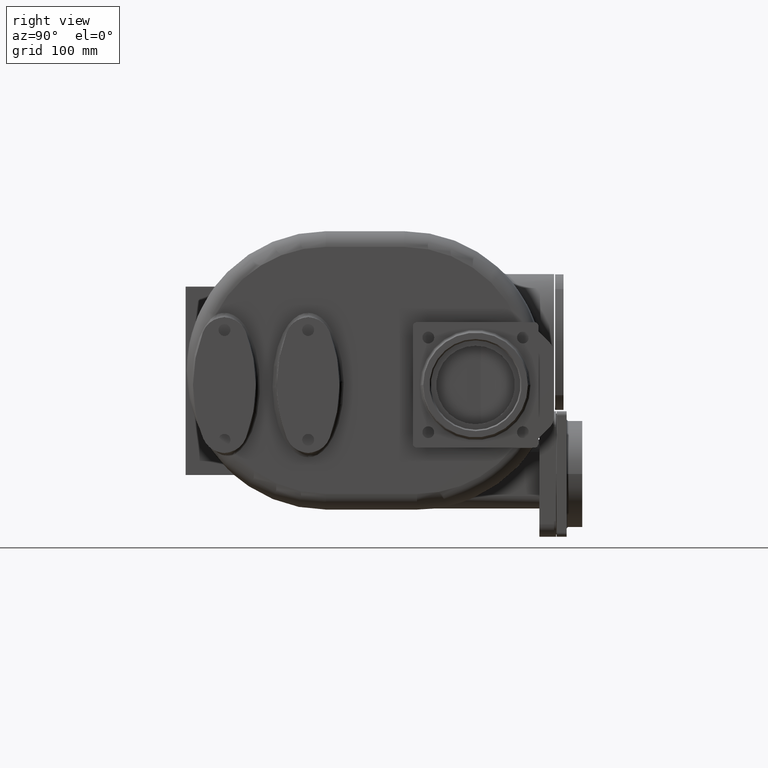
[diagram: clean part render]
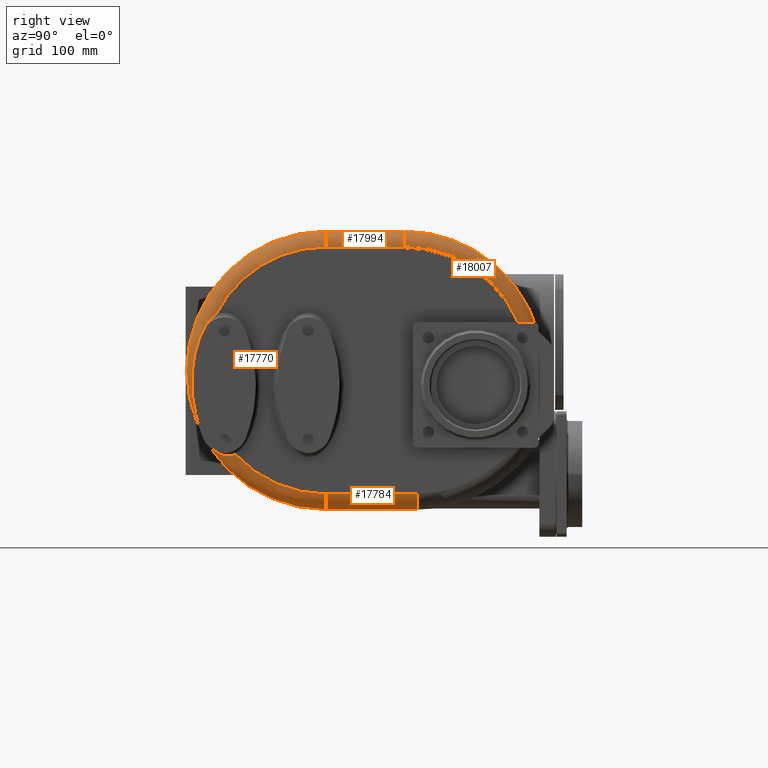
[diagram: same view with one multi-face feature highlighted, each face labeled with its STEP entity id]
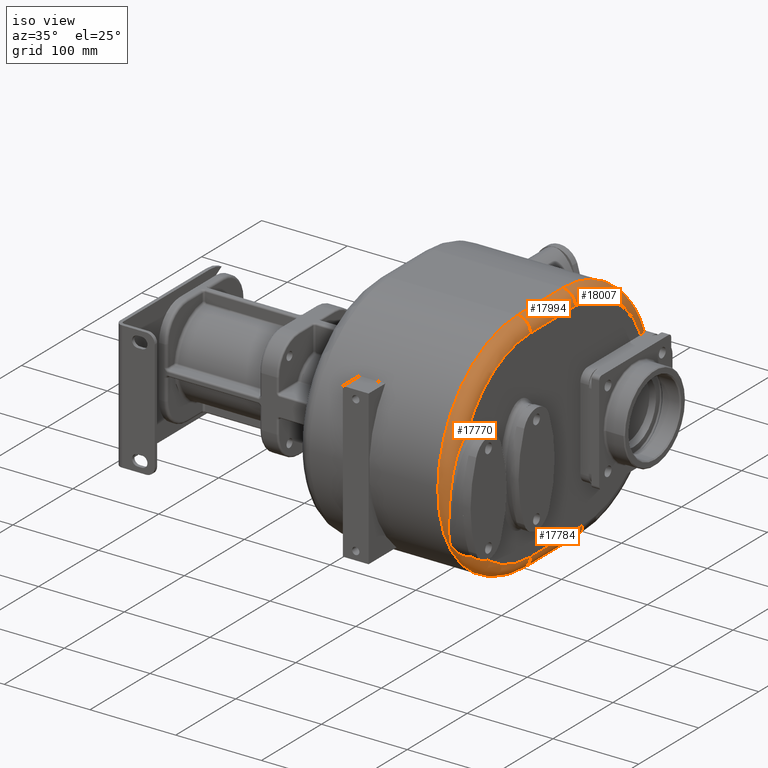
[diagram: same view with one multi-face feature highlighted, each face labeled with its STEP entity id]
A machine part, right view. The highlighted faces form ONE feature: a constant-radius fillet chain: 4 tangent blend faces with common blend radius 15 mm. The faces share edges in the B-rep.
A second angle (iso view) of the same feature is appended — it is thin or edge-on in the first view.
Their STEP definitions:
[1] entity #17770 (Torus):
#3600=CARTESIAN_POINT('',(1.099999968321E2,2.854941796201E1,5.295498208904E1));
#3602=CARTESIAN_POINT('',(1.1E2,1.34E2,0.E0));
#3603=DIRECTION('',(1.E0,0.E0,0.E0));
#3604=DIRECTION('',(0.E0,0.E0,1.E0));
#3605=AXIS2_PLACEMENT_3D('',#3602,#3603,#3604);
#3625=CARTESIAN_POINT('',(1.1E2,1.34E2,0.E0));
#3626=DIRECTION('',(1.E0,0.E0,0.E0));
#3627=DIRECTION('',(0.E0,-7.353211135372E-1,-6.777188650071E-1));
#3628=AXIS2_PLACEMENT_3D('',#3625,#3626,#3627);
#3630=CARTESIAN_POINT('',(1.099999543372E2,4.723210860638E1,-7.997082607466E1));
#3983=CARTESIAN_POINT('',(1.079149421773E2,3.854579071676E1,-8.167731309802E1));
#3984=CARTESIAN_POINT('',(1.079897949988E2,3.872993324850E1,-8.169761679331E1));
#3985=CARTESIAN_POINT('',(1.081352500198E2,3.909453872647E1,-8.173120300626E1));
#3986=CARTESIAN_POINT('',(1.083404899019E2,3.962974912810E1,-8.176155064838E1));
#3987=CARTESIAN_POINT('',(1.085330286433E2,4.015364092347E1,-8.177287008109E1));
#3988=CARTESIAN_POINT('',(1.087130223685E2,4.066645585732E1,-8.176617161015E1));
#3989=CARTESIAN_POINT('',(1.088806816907E2,4.116853132699E1,-8.174230818800E1));
#3990=CARTESIAN_POINT('',(1.090361280662E2,4.166003728225E1,-8.170216415885E1));
#3991=CARTESIAN_POINT('',(1.091795335776E2,4.214123041396E1,-8.164647428566E1));
#3992=CARTESIAN_POINT('',(1.093110655642E2,4.261248063496E1,-8.157600314208E1));
#3993=CARTESIAN_POINT('',(1.094308955891E2,4.307416591645E1,-8.149135255774E1));
#3994=CARTESIAN_POINT('',(1.095391410393E2,4.352658791554E1,-8.139314359606E1));
#3995=CARTESIAN_POINT('',(1.096359146895E2,4.397009038756E1,-8.128192135524E1));
#3996=CARTESIAN_POINT('',(1.097212913245E2,4.440490410809E1,-8.115815773866E1));
#3997=CARTESIAN_POINT('',(1.097953243939E2,4.483130163508E1,-8.102237745890E1));
#3998=CARTESIAN_POINT('',(1.098580888305E2,4.524973266349E1,-8.087487733268E1));
#3999=CARTESIAN_POINT('',(1.099096211668E2,4.566081640580E1,-8.071591898249E1));
#4000=CARTESIAN_POINT('',(1.099498667365E2,4.606475232610E1,-8.054580537908E1));
#4001=CARTESIAN_POINT('',(1.099787193561E2,4.646146113465E1,-8.036492373336E1));
#4002=CARTESIAN_POINT('',(1.099961354777E2,4.685096834644E1,-8.017368568143E1));
#4003=CARTESIAN_POINT('',(1.099999548054E2,4.710587665758E1,-8.003950888655E1));
#4004=CARTESIAN_POINT('',(1.099999543372E2,4.723210860638E1,-7.997082607466E1));
#4006=CARTESIAN_POINT('',(9.5E1,1.34E2,1.18E2));
#4007=DIRECTION('',(0.E0,-1.E0,0.E0));
#4008=DIRECTION('',(1.E0,0.E0,0.E0));
#4009=AXIS2_PLACEMENT_3D('',#4006,#4007,#4008);
#4011=CARTESIAN_POINT('',(1.099999968321E2,2.854941796201E1,5.295498208904E1));
#4012=CARTESIAN_POINT('',(1.100000134998E2,2.835316664937E1,5.282956656615E1));
#4013=CARTESIAN_POINT('',(1.099971587277E2,2.795793976020E1,5.256768140155E1));
#4014=CARTESIAN_POINT('',(1.099846295436E2,2.735534771317E1,5.214204110849E1));
#4015=CARTESIAN_POINT('',(1.099640074941E2,2.674294766801E1,5.168027092209E1));
#4016=CARTESIAN_POINT('',(1.099354791951E2,2.611988943082E1,5.118003767492E1));
#4017=CARTESIAN_POINT('',(1.098992291992E2,2.548600346781E1,5.063874448685E1));
#4018=CARTESIAN_POINT('',(1.098554424202E2,2.484081833294E1,5.005331215967E1));
#4019=CARTESIAN_POINT('',(1.098043216589E2,2.418406782779E1,4.942044962757E1));
#4020=CARTESIAN_POINT('',(1.097460953403E2,2.351574475143E1,4.873697575795E1));
#4021=CARTESIAN_POINT('',(1.096810094529E2,2.283599429479E1,4.799971547537E1));
#4022=CARTESIAN_POINT('',(1.096093485488E2,2.214552119710E1,4.720620097528E1));
#4023=CARTESIAN_POINT('',(1.095315023953E2,2.144582458251E1,4.635474143582E1));
#4024=CARTESIAN_POINT('',(1.094480070869E2,2.073849957681E1,4.544281567396E1));
#4025=CARTESIAN_POINT('',(1.093593080882E2,2.002437357994E1,4.446717712550E1));
#4026=CARTESIAN_POINT('',(1.092658307218E2,1.930429348830E1,4.342452615130E1));
#4027=CARTESIAN_POINT('',(1.091679566343E2,1.857945720835E1,4.231244895863E1));
#4028=CARTESIAN_POINT('',(1.090661342409E2,1.785159594990E1,4.112898561802E1));
#4029=CARTESIAN_POINT('',(1.089609497419E2,1.712250473550E1,3.987100163132E1));
#4030=CARTESIAN_POINT('',(1.088527816133E2,1.639330534926E1,3.853458143421E1));
#4031=CARTESIAN_POINT('',(1.087419279814E2,1.566541850921E1,3.711627856810E1));
#4032=CARTESIAN_POINT('',(1.086287098563E2,1.494185048926E1,3.561660949650E1));
#4033=CARTESIAN_POINT('',(1.085136937515E2,1.422596268130E1,3.403527917892E1));
#4034=CARTESIAN_POINT('',(1.083971294370E2,1.351983774987E1,3.236954701905E1));
#4035=CARTESIAN_POINT('',(1.082790640687E2,1.282557875331E1,3.061698881989E1));
#4036=CARTESIAN_POINT('',(1.081591955334E2,1.214510830461E1,2.877561796165E1));
#4037=CARTESIAN_POINT('',(1.080374676953E2,1.148116949769E1,2.684305135980E1));
#4038=CARTESIAN_POINT('',(1.079138957546E2,1.083767049488E1,2.482027336324E1));
#4039=CARTESIAN_POINT('',(1.077881589903E2,1.021810729054E1,2.270858251238E1));
#4040=CARTESIAN_POINT('',(1.076595264665E2,9.625529907349E0,2.050948321391E1));
#4041=CARTESIAN_POINT('',(1.075275809057E2,9.063771212637E0,1.822493314615E1));
#4042=CARTESIAN_POINT('',(1.073918036168E2,8.536918818585E0,1.585952203550E1));
#4043=CARTESIAN_POINT('',(1.072513096553E2,8.048411553964E0,1.341791998880E1));
#4044=CARTESIAN_POINT('',(1.071049189037E2,7.601225008345E0,1.090475348919E1));
#4045=CARTESIAN_POINT('',(1.069518620310E2,7.198954752628E0,8.326285981737E0));
#4046=CARTESIAN_POINT('',(1.067911987787E2,6.844754144147E0,5.690479465267E0));
#4047=CARTESIAN_POINT('',(1.066217262244E2,6.541032737843E0,3.005227532360E0));
#4048=CARTESIAN_POINT('',(1.064421796669E2,6.289760131036E0,2.784704989680E-1));
#4049=CARTESIAN_POINT('',(1.062517001691E2,6.092951046978E0,-2.480808892410E0));
#4050=CARTESIAN_POINT('',(1.060493179941E2,5.951896537566E0,-5.263223814640E0));
#4051=CARTESIAN_POINT('',(1.058339878866E2,5.867211551783E0,-8.059378008124E0));
#4052=CARTESIAN_POINT('',(1.056048235936E2,5.839069967176E0,-1.085985781864E1));
#4053=CARTESIAN_POINT('',(1.053612294759E2,5.867387150527E0,-1.365616473016E1));
#4054=CARTESIAN_POINT('',(1.051026217639E2,5.951500022901E0,-1.643986500484E1));
#4055=CARTESIAN_POINT('',(1.048285092835E2,6.090197717317E0,-1.920232400274E1));
#4056=CARTESIAN_POINT('',(1.045386965225E2,6.282084004247E0,-2.193609331906E1));
#4057=CARTESIAN_POINT('',(1.042330910720E2,6.525587733357E0,-2.463527349903E1));
#4058=CARTESIAN_POINT('',(1.039117094236E2,6.818706214589E0,-2.729358043591E1));
#4059=CARTESIAN_POINT('',(1.035748037712E2,7.159334845801E0,-2.990569462767E1));
#4060=CARTESIAN_POINT('',(1.032227276997E2,7.545661076667E0,-3.246879462623E1));
#4061=CARTESIAN_POINT('',(1.028558446504E2,7.975585207072E0,-3.497974358513E1));
#4062=CARTESIAN_POINT('',(1.024748780159E2,8.447120938364E0,-3.743590135518E1));
#4063=CARTESIAN_POINT('',(1.020810046491E2,8.958662207051E0,-3.983575158337E1));
#4064=CARTESIAN_POINT('',(1.016753581398E2,9.508020000508E0,-4.217684613867E1));
#4065=CARTESIAN_POINT('',(1.012591738286E2,1.009442121296E1,-4.446123918523E1));
#4066=CARTESIAN_POINT('',(1.008339390474E2,1.071804826340E1,-4.669334272810E1));
#4067=CARTESIAN_POINT('',(1.003998045919E2,1.138014373620E1,-4.887985696978E1));
#4068=CARTESIAN_POINT('',(9.997403772003E1,1.206305709337E1,-5.096510326674E1));
#4069=CARTESIAN_POINT('',(9.957618570637E1,1.273891929757E1,-5.288454734034E1));
#4070=CARTESIAN_POINT('',(9.922025956818E1,1.338398761309E1,-5.460162105078E1));
#4071=CARTESIAN_POINT('',(9.891188741317E1,1.399281693209E1,-5.612956861762E1));
#4072=CARTESIAN_POINT('',(9.865297453643E1,1.455469709281E1,-5.746899193262E1));
#4073=CARTESIAN_POINT('',(9.844100869560E1,1.506587602833E1,-5.863460396584E1));
#4074=CARTESIAN_POINT('',(9.827419751297E1,1.553628062129E1,-5.966332467555E1));
#4075=CARTESIAN_POINT('',(9.814662963665E1,1.597501694370E1,-6.058707587688E1));
#4076=CARTESIAN_POINT('',(9.805198006334E1,1.639488141842E1,-6.144085110228E1));
#4077=CARTESIAN_POINT('',(9.798681089634E1,1.680555384491E1,-6.224885226598E1));
#4078=CARTESIAN_POINT('',(9.794933557865E1,1.720351339746E1,-6.300802002279E1));
#4079=CARTESIAN_POINT('',(9.793682871542E1,1.758675360491E1,-6.371831124396E1));
#4080=CARTESIAN_POINT('',(9.794678147257E1,1.795818054535E1,-6.438802993675E1));
#4081=CARTESIAN_POINT('',(9.797785975640E1,1.832293349612E1,-6.502821857770E1));
#4082=CARTESIAN_POINT('',(9.803005507075E1,1.868621792475E1,-6.564872721585E1));
#4083=CARTESIAN_POINT('',(9.810520672106E1,1.905607173101E1,-6.626284089395E1));
#4084=CARTESIAN_POINT('',(9.820406177648E1,1.944096212557E1,-6.688409564063E1));
#4085=CARTESIAN_POINT('',(9.832957528153E1,1.985057811788E1,-6.752610330714E1));
#4086=CARTESIAN_POINT('',(9.848377288119E1,2.028834394330E1,-6.819116704427E1));
#4087=CARTESIAN_POINT('',(9.866831439177E1,2.075686146575E1,-6.887971599676E1));
#4088=CARTESIAN_POINT('',(9.888453869020E1,2.125859354807E1,-6.959135776319E1));
#4089=CARTESIAN_POINT('',(9.913214491699E1,2.179267403799E1,-7.032055531191E1));
#4090=CARTESIAN_POINT('',(9.941133209668E1,2.235934905195E1,-7.106297931206E1));
#4091=CARTESIAN_POINT('',(9.972010679066E1,2.295648288175E1,-7.181149342784E1));
#4092=CARTESIAN_POINT('',(1.000552380298E2,2.358155809437E1,-7.255932862963E1));
#4093=CARTESIAN_POINT('',(1.004117905933E2,2.423060494562E1,-7.329917913310E1));
#4094=CARTESIAN_POINT('',(1.007857786279E2,2.489885913891E1,-7.402285469104E1));
#4095=CARTESIAN_POINT('',(1.011724378368E2,2.558083188704E1,-7.472266746405E1));
#4096=CARTESIAN_POINT('',(1.015670391260E2,2.627153796377E1,-7.539290401584E1));
#4097=CARTESIAN_POINT('',(1.019664116367E2,2.696825156511E1,-7.603083414546E1));
#4098=CARTESIAN_POINT('',(1.023671928256E2,2.766741793006E1,-7.663344546515E1));
#4099=CARTESIAN_POINT('',(1.027661616496E2,2.836577411498E1,-7.719888780435E1));
#4100=CARTESIAN_POINT('',(1.031614723292E2,2.906200260040E1,-7.772726184074E1));
#4101=CARTESIAN_POINT('',(1.035513421605E2,2.975435975892E1,-7.821836389774E1));
#4102=CARTESIAN_POINT('',(1.039341266264E2,3.044129667911E1,-7.867250040261E1));
#4103=CARTESIAN_POINT('',(1.043086819610E2,3.112186676469E1,-7.909048228019E1));
#4104=CARTESIAN_POINT('',(1.046739079854E2,3.179494889614E1,-7.947304912286E1));
#4105=CARTESIAN_POINT('',(1.050288764802E2,3.245966289779E1,-7.982125209509E1));
#4106=CARTESIAN_POINT('',(1.053729986265E2,3.311552015210E1,-8.013631360274E1));
#4107=CARTESIAN_POINT('',(1.057057376043E2,3.376199584571E1,-8.041941542751E1));
#4108=CARTESIAN_POINT('',(1.060265873225E2,3.439857020312E1,-8.067179715915E1));
#4109=CARTESIAN_POINT('',(1.063350867516E2,3.502460850208E1,-8.089458902403E1));
#4110=CARTESIAN_POINT('',(1.066307899858E2,3.563942197078E1,-8.108896536509E1));
#4111=CARTESIAN_POINT('',(1.069135480276E2,3.624284410946E1,-8.125629158302E1));
#4112=CARTESIAN_POINT('',(1.071834492943E2,3.683508428964E1,-8.139789279658E1));
#4113=CARTESIAN_POINT('',(1.074405666819E2,3.741637416584E1,-8.151506929698E1));
#4114=CARTESIAN_POINT('',(1.076850197444E2,3.798699743083E1,-8.160900809558E1));
#4115=CARTESIAN_POINT('',(1.078397157894E2,3.836072455103E1,-8.165690527887E1));
#4116=CARTESIAN_POINT('',(1.079149421773E2,3.854579071676E1,-8.167731309802E1));
#4118=CARTESIAN_POINT('',(9.5E1,1.34E2,-1.18E2));
#4119=DIRECTION('',(0.E0,1.E0,0.E0));
#4120=DIRECTION('',(1.E0,0.E0,0.E0));
#4121=AXIS2_PLACEMENT_3D('',#4118,#4119,#4120);
#4476=CARTESIAN_POINT('',(9.5E1,1.34E2,0.E0));
#4477=DIRECTION('',(1.E0,0.E0,0.E0));
#4478=DIRECTION('',(0.E0,0.E0,1.E0));
#4479=AXIS2_PLACEMENT_3D('',#4476,#4477,#4478);
#10296=CARTESIAN_POINT('',(1.1E2,1.34E2,-1.18E2));
#10297=VERTEX_POINT('',#10296);
#10298=CARTESIAN_POINT('',(9.5E1,1.34E2,-1.33E2));
#10299=VERTEX_POINT('',#10298);
#10300=CARTESIAN_POINT('',(9.5E1,1.34E2,1.33E2));
#10301=VERTEX_POINT('',#10300);
#10303=CARTESIAN_POINT('',(1.1E2,1.34E2,1.18E2));
#10305=VERTEX_POINT('',#10303);
#10381=VERTEX_POINT('',#3600);
#10383=VERTEX_POINT('',#3630);
#10385=VERTEX_POINT('',#3983);
#17752=CARTESIAN_POINT('',(9.5E1,1.34E2,0.E0));
#17753=DIRECTION('',(-1.E0,0.E0,0.E0));
#17754=DIRECTION('',(0.E0,7.698698820877E-3,9.999703645791E-1));
#17755=AXIS2_PLACEMENT_3D('',#17752,#17753,#17754);
#17756=TOROIDAL_SURFACE('',#17755,1.18E2,1.5E1);
#17757=ORIENTED_EDGE('',*,*,#17742,.T.);
#17758=ORIENTED_EDGE('',*,*,#17447,.T.);
#17760=ORIENTED_EDGE('',*,*,#17759,.T.);
#17762=ORIENTED_EDGE('',*,*,#17761,.F.);
#17764=ORIENTED_EDGE('',*,*,#17763,.F.);
#17765=ORIENTED_EDGE('',*,*,#17431,.T.);
#17767=ORIENTED_EDGE('',*,*,#17766,.T.);
#17768=EDGE_LOOP('',(#17757,#17758,#17760,#17762,#17764,#17765,#17767));
#17769=FACE_OUTER_BOUND('',#17768,.F.);
#17770=ADVANCED_FACE('',(#17769),#17756,.T.);
#3606=CIRCLE('',#3605,1.18E2);
#3629=CIRCLE('',#3628,1.18E2);
#4005=B_SPLINE_CURVE_WITH_KNOTS('',3,(#3983,#3984,#3985,#3986,#3987,#3988,#3989,
#3990,#3991,#3992,#3993,#3994,#3995,#3996,#3997,#3998,#3999,#4000,#4001,#4002,
#4003,#4004),.UNSPECIFIED.,.F.,.F.,(4,1,1,1,1,1,1,1,1,1,1,1,1,1,1,1,1,1,1,4),(
0.E0,5.263157894737E-2,1.052631578947E-1,1.578947368421E-1,2.105263157895E-1,
2.631578947368E-1,3.157894736842E-1,3.684210526316E-1,4.210526315789E-1,
4.736842105263E-1,5.263157894737E-1,5.789473684211E-1,6.315789473684E-1,
6.842105263158E-1,7.368421052632E-1,7.894736842105E-1,8.421052631579E-1,
8.947368421053E-1,9.473684210526E-1,1.E0),.UNSPECIFIED.);
#4010=CIRCLE('',#4009,1.5E1);
#4117=B_SPLINE_CURVE_WITH_KNOTS('',3,(#4011,#4012,#4013,#4014,#4015,#4016,#4017,
#4018,#4019,#4020,#4021,#4022,#4023,#4024,#4025,#4026,#4027,#4028,#4029,#4030,
#4031,#4032,#4033,#4034,#4035,#4036,#4037,#4038,#4039,#4040,#4041,#4042,#4043,
#4044,#4045,#4046,#4047,#4048,#4049,#4050,#4051,#4052,#4053,#4054,#4055,#4056,
#4057,#4058,#4059,#4060,#4061,#4062,#4063,#4064,#4065,#4066,#4067,#4068,#4069,
#4070,#4071,#4072,#4073,#4074,#4075,#4076,#4077,#4078,#4079,#4080,#4081,#4082,
#4083,#4084,#4085,#4086,#4087,#4088,#4089,#4090,#4091,#4092,#4093,#4094,#4095,
#4096,#4097,#4098,#4099,#4100,#4101,#4102,#4103,#4104,#4105,#4106,#4107,#4108,
#4109,#4110,#4111,#4112,#4113,#4114,#4115,#4116),.UNSPECIFIED.,.F.,.F.,(4,1,1,1,
1,1,1,1,1,1,1,1,1,1,1,1,1,1,1,1,1,1,1,1,1,1,1,1,1,1,1,1,1,1,1,1,1,1,1,1,1,1,1,1,
1,1,1,1,1,1,1,1,1,1,1,1,1,1,1,1,1,1,1,1,1,1,1,1,1,1,1,1,1,1,1,1,1,1,1,1,1,1,1,1,
1,1,1,1,1,1,1,1,1,1,1,1,1,1,1,1,1,1,1,4),(0.E0,9.708737864078E-3,
1.941747572816E-2,2.912621359223E-2,3.883495145631E-2,4.854368932039E-2,
5.825242718447E-2,6.796116504854E-2,7.766990291262E-2,8.737864077670E-2,
9.708737864078E-2,1.067961165049E-1,1.165048543689E-1,1.262135922330E-1,
1.359223300971E-1,1.456310679612E-1,1.553398058252E-1,1.650485436893E-1,
1.747572815534E-1,1.844660194175E-1,1.941747572816E-1,2.038834951456E-1,
2.135922330097E-1,2.233009708738E-1,2.330097087379E-1,2.427184466019E-1,
2.524271844660E-1,2.621359223301E-1,2.718446601942E-1,2.815533980583E-1,
2.912621359223E-1,3.009708737864E-1,3.106796116505E-1,3.203883495146E-1,
3.300970873786E-1,3.398058252427E-1,3.495145631068E-1,3.592233009709E-1,
3.689320388350E-1,3.786407766990E-1,3.883495145631E-1,3.980582524272E-1,
4.077669902913E-1,4.174757281553E-1,4.271844660194E-1,4.368932038835E-1,
4.466019417476E-1,4.563106796117E-1,4.660194174757E-1,4.757281553398E-1,
4.854368932039E-1,4.951456310680E-1,5.048543689320E-1,5.145631067961E-1,
5.242718446602E-1,5.339805825243E-1,5.436893203883E-1,5.533980582524E-1,
5.631067961165E-1,5.728155339806E-1,5.825242718447E-1,5.922330097087E-1,
6.019417475728E-1,6.116504854369E-1,6.213592233010E-1,6.310679611650E-1,
6.407766990291E-1,6.504854368932E-1,6.601941747573E-1,6.699029126214E-1,
6.796116504854E-1,6.893203883495E-1,6.990291262136E-1,7.087378640777E-1,
7.184466019417E-1,7.281553398058E-1,7.378640776699E-1,7.475728155340E-1,
7.572815533981E-1,7.669902912621E-1,7.766990291262E-1,7.864077669903E-1,
7.961165048544E-1,8.058252427184E-1,8.155339805825E-1,8.252427184466E-1,
8.349514563107E-1,8.446601941748E-1,8.543689320388E-1,8.640776699029E-1,
8.737864077670E-1,8.834951456311E-1,8.932038834951E-1,9.029126213592E-1,
9.126213592233E-1,9.223300970874E-1,9.320388349515E-1,9.417475728155E-1,
9.514563106796E-1,9.611650485437E-1,9.708737864078E-1,9.805825242718E-1,
9.902912621359E-1,1.E0),.UNSPECIFIED.);
#4122=CIRCLE('',#4121,1.5E1);
#4480=CIRCLE('',#4479,1.33E2);
#17431=EDGE_CURVE('',#10305,#10381,#3606,.T.);
#17447=EDGE_CURVE('',#10383,#10297,#3629,.T.);
#17742=EDGE_CURVE('',#10385,#10383,#4005,.T.);
#17759=EDGE_CURVE('',#10297,#10299,#4122,.T.);
#17761=EDGE_CURVE('',#10301,#10299,#4480,.T.);
#17763=EDGE_CURVE('',#10305,#10301,#4010,.T.);
#17766=EDGE_CURVE('',#10381,#10385,#4117,.T.);
[2] entity #17994 (Cylinder):
#3607=DIRECTION('',(0.E0,-1.E0,0.E0));
#3608=VECTOR('',#3607,7.487506727666E1);
#3609=CARTESIAN_POINT('',(1.1E2,2.088750672767E2,1.18E2));
#3610=LINE('',#3609,#3608);
#4006=CARTESIAN_POINT('',(9.5E1,1.34E2,1.18E2));
#4007=DIRECTION('',(0.E0,-1.E0,0.E0));
#4008=DIRECTION('',(1.E0,0.E0,0.E0));
#4009=AXIS2_PLACEMENT_3D('',#4006,#4007,#4008);
#4507=DIRECTION('',(0.E0,-1.E0,0.E0));
#4508=VECTOR('',#4507,7.487506727662E1);
#4509=CARTESIAN_POINT('',(9.5E1,2.088750672767E2,1.33E2));
#4510=LINE('',#4509,#4508);
#4515=CARTESIAN_POINT('',(9.5E1,2.088750672767E2,1.18E2));
#4516=DIRECTION('',(0.E0,-1.E0,0.E0));
#4517=DIRECTION('',(1.E0,0.E0,0.E0));
#4518=AXIS2_PLACEMENT_3D('',#4515,#4516,#4517);
#10300=CARTESIAN_POINT('',(9.5E1,1.34E2,1.33E2));
#10301=VERTEX_POINT('',#10300);
#10302=CARTESIAN_POINT('',(1.1E2,2.088750672767E2,1.18E2));
#10303=CARTESIAN_POINT('',(1.1E2,1.34E2,1.18E2));
#10304=VERTEX_POINT('',#10302);
#10305=VERTEX_POINT('',#10303);
#10306=CARTESIAN_POINT('',(9.5E1,2.088750672767E2,1.33E2));
#10307=VERTEX_POINT('',#10306);
#17982=CARTESIAN_POINT('',(9.5E1,2.098990043348E2,1.18E2));
#17983=DIRECTION('',(0.E0,-1.E0,0.E0));
#17984=DIRECTION('',(1.E0,0.E0,0.E0));
#17985=AXIS2_PLACEMENT_3D('',#17982,#17983,#17984);
#17986=CYLINDRICAL_SURFACE('',#17985,1.5E1);
#17987=ORIENTED_EDGE('',*,*,#17433,.T.);
#17988=ORIENTED_EDGE('',*,*,#17763,.T.);
#17989=ORIENTED_EDGE('',*,*,#17976,.F.);
#17991=ORIENTED_EDGE('',*,*,#17990,.F.);
#17992=EDGE_LOOP('',(#17987,#17988,#17989,#17991));
#17993=FACE_OUTER_BOUND('',#17992,.F.);
#17994=ADVANCED_FACE('',(#17993),#17986,.T.);
#4010=CIRCLE('',#4009,1.5E1);
#4519=CIRCLE('',#4518,1.5E1);
#17433=EDGE_CURVE('',#10304,#10305,#3610,.T.);
#17763=EDGE_CURVE('',#10305,#10301,#4010,.T.);
#17976=EDGE_CURVE('',#10307,#10301,#4510,.T.);
#17990=EDGE_CURVE('',#10304,#10307,#4519,.T.);
[3] entity #18007 (Torus):
#1848=CARTESIAN_POINT('',(9.5E1,2.088750672767E2,0.E0));
#1849=DIRECTION('',(1.E0,0.E0,0.E0));
#1850=DIRECTION('',(0.E0,9.597101877962E-1,2.809917355372E-1));
#1851=AXIS2_PLACEMENT_3D('',#1848,#1849,#1850);
#3611=CARTESIAN_POINT('',(1.1E2,2.088750672767E2,0.E0));
#3612=DIRECTION('',(1.E0,0.E0,0.E0));
#3613=DIRECTION('',(0.E0,9.208866242174E-1,3.898305084746E-1));
#3614=AXIS2_PLACEMENT_3D('',#3611,#3612,#3613);
#4515=CARTESIAN_POINT('',(9.5E1,2.088750672767E2,1.18E2));
#4516=DIRECTION('',(0.E0,-1.E0,0.E0));
#4517=DIRECTION('',(1.E0,0.E0,0.E0));
#4518=AXIS2_PLACEMENT_3D('',#4515,#4516,#4517);
#4520=CARTESIAN_POINT('',(9.5E1,3.365165222536E2,3.737190082645E1));
#4521=CARTESIAN_POINT('',(9.519163795858E1,3.364660266914E2,3.754436534874E1));
#4522=CARTESIAN_POINT('',(9.557454922347E1,3.363573896027E2,3.788669944325E1));
#4523=CARTESIAN_POINT('',(9.614795274658E1,3.361715922827E2,3.839227091874E1));
#4524=CARTESIAN_POINT('',(9.671841442581E1,3.359637718267E2,3.888792292765E1));
#4525=CARTESIAN_POINT('',(9.728525314604E1,3.357344378555E2,3.937284879968E1));
#4526=CARTESIAN_POINT('',(9.784696542E1,3.354844787849E2,3.984555956345E1));
#4527=CARTESIAN_POINT('',(9.840193937609E1,3.352150220722E2,4.030454867118E1));
#4528=CARTESIAN_POINT('',(9.894962035160E1,3.349267820451E2,4.074922999209E1));
#4529=CARTESIAN_POINT('',(9.948852487304E1,3.346210168009E2,4.117829491274E1));
#4530=CARTESIAN_POINT('',(1.000174633097E2,3.342989905094E2,4.159074814019E1));
#4531=CARTESIAN_POINT('',(1.005360268724E2,3.339615492060E2,4.198624056362E1));
#4532=CARTESIAN_POINT('',(1.010428512541E2,3.336102161596E2,4.236373214174E1));
#4533=CARTESIAN_POINT('',(1.015370876069E2,3.332463156582E2,4.272264991032E1));
#4534=CARTESIAN_POINT('',(1.020185319912E2,3.328707248384E2,4.306291870236E1));
#4535=CARTESIAN_POINT('',(1.024861331328E2,3.324850169183E2,4.338389731942E1));
#4536=CARTESIAN_POINT('',(1.029392297944E2,3.320905838207E2,4.368529433889E1));
#4537=CARTESIAN_POINT('',(1.033779549249E2,3.316881370495E2,4.396737022299E1));
#4538=CARTESIAN_POINT('',(1.038015570681E2,3.312791918812E2,4.422983085536E1));
#4539=CARTESIAN_POINT('',(1.042093366963E2,3.308653606396E2,4.447250386275E1));
#4540=CARTESIAN_POINT('',(1.046017422030E2,3.304471187004E2,4.469593219673E1));
#4541=CARTESIAN_POINT('',(1.049786824557E2,3.300254431390E2,4.490033171805E1));
#4542=CARTESIAN_POINT('',(1.053399957218E2,3.296014183634E2,4.508591024727E1));
#4543=CARTESIAN_POINT('',(1.056855055284E2,3.291762031374E2,4.525291366611E1));
#4544=CARTESIAN_POINT('',(1.060157857827E2,3.287500086937E2,4.540195254413E1));
#4545=CARTESIAN_POINT('',(1.063305286751E2,3.283241409615E2,4.553323020695E1));
#4546=CARTESIAN_POINT('',(1.066299117909E2,3.278993331923E2,4.564721133591E1));
#4547=CARTESIAN_POINT('',(1.069142259003E2,3.274761198718E2,4.574439521215E1));
#4548=CARTESIAN_POINT('',(1.071835379896E2,3.270553780705E2,4.582522165690E1));
#4549=CARTESIAN_POINT('',(1.074385059290E2,3.266370230096E2,4.589029655359E1));
#4550=CARTESIAN_POINT('',(1.076791186667E2,3.262219994504E2,4.594002585381E1));
#4551=CARTESIAN_POINT('',(1.079058066663E2,3.258105362541E2,4.597494193292E1));
#4552=CARTESIAN_POINT('',(1.081190429473E2,3.254026825469E2,4.599553195021E1));
#4553=CARTESIAN_POINT('',(1.082522924428E2,3.251336865768E2,4.6E1));
#4554=CARTESIAN_POINT('',(1.083167298316E2,3.25E2,4.6E1));
#4556=CARTESIAN_POINT('',(1.083167298316E2,3.25E2,4.6E1));
#4557=CARTESIAN_POINT('',(1.084000618930E2,3.248271131366E2,4.6E1));
#4558=CARTESIAN_POINT('',(1.085610528507E2,3.244776990634E2,4.6E1));
#4559=CARTESIAN_POINT('',(1.087855711841E2,3.239420677430E2,4.6E1));
#4560=CARTESIAN_POINT('',(1.089922906122E2,3.233963675469E2,4.6E1));
#4561=CARTESIAN_POINT('',(1.091807717279E2,3.228414194524E2,4.6E1));
#4562=CARTESIAN_POINT('',(1.093508624964E2,3.222771242691E2,4.6E1));
#4563=CARTESIAN_POINT('',(1.095019816089E2,3.217047391620E2,4.6E1));
#4564=CARTESIAN_POINT('',(1.096337062860E2,3.211254504100E2,4.6E1));
#4565=CARTESIAN_POINT('',(1.097459220615E2,3.205391160900E2,4.6E1));
#4566=CARTESIAN_POINT('',(1.098382099026E2,3.199469734487E2,4.6E1));
#4567=CARTESIAN_POINT('',(1.099102540236E2,3.193504830458E2,4.6E1));
#4568=CARTESIAN_POINT('',(1.099619481322E2,3.187497686694E2,4.6E1));
#4569=CARTESIAN_POINT('',(1.099930704114E2,3.181456834863E2,4.6E1));
#4570=CARTESIAN_POINT('',(1.1E2,3.177419267701E2,4.6E1));
#4571=CARTESIAN_POINT('',(1.1E2,3.175396889343E2,4.6E1));
#10302=CARTESIAN_POINT('',(1.1E2,2.088750672767E2,1.18E2));
#10304=VERTEX_POINT('',#10302);
#10306=CARTESIAN_POINT('',(9.5E1,2.088750672767E2,1.33E2));
#10307=VERTEX_POINT('',#10306);
#10308=CARTESIAN_POINT('',(1.1E2,3.175396889343E2,4.6E1));
#10309=VERTEX_POINT('',#10308);
#10310=CARTESIAN_POINT('',(9.5E1,3.365165222536E2,3.737190082645E1));
#10311=VERTEX_POINT('',#10310);
#10312=VERTEX_POINT('',#4554);
#17995=CARTESIAN_POINT('',(9.5E1,2.088750672767E2,0.E0));
#17996=DIRECTION('',(-1.E0,0.E0,0.E0));
#17997=DIRECTION('',(0.E0,9.618450171239E-1,2.735948885377E-1));
#17998=AXIS2_PLACEMENT_3D('',#17995,#17996,#17997);
#17999=TOROIDAL_SURFACE('',#17998,1.18E2,1.5E1);
#18000=ORIENTED_EDGE('',*,*,#17435,.T.);
#18001=ORIENTED_EDGE('',*,*,#17990,.T.);
#18002=ORIENTED_EDGE('',*,*,#14849,.F.);
#18003=ORIENTED_EDGE('',*,*,#16347,.T.);
#18004=ORIENTED_EDGE('',*,*,#16682,.T.);
#18005=EDGE_LOOP('',(#18000,#18001,#18002,#18003,#18004));
#18006=FACE_OUTER_BOUND('',#18005,.F.);
#18007=ADVANCED_FACE('',(#18006),#17999,.T.);
#1852=CIRCLE('',#1851,1.33E2);
#3615=CIRCLE('',#3614,1.18E2);
#4519=CIRCLE('',#4518,1.5E1);
#4555=B_SPLINE_CURVE_WITH_KNOTS('',3,(#4520,#4521,#4522,#4523,#4524,#4525,#4526,
#4527,#4528,#4529,#4530,#4531,#4532,#4533,#4534,#4535,#4536,#4537,#4538,#4539,
#4540,#4541,#4542,#4543,#4544,#4545,#4546,#4547,#4548,#4549,#4550,#4551,#4552,
#4553,#4554),.UNSPECIFIED.,.F.,.F.,(4,1,1,1,1,1,1,1,1,1,1,1,1,1,1,1,1,1,1,1,1,1,
1,1,1,1,1,1,1,1,1,1,4),(0.E0,3.125E-2,6.25E-2,9.375E-2,1.25E-1,1.5625E-1,
1.875E-1,2.1875E-1,2.5E-1,2.8125E-1,3.125E-1,3.4375E-1,3.75E-1,4.0625E-1,
4.375E-1,4.6875E-1,5.E-1,5.3125E-1,5.625E-1,5.9375E-1,6.25E-1,6.5625E-1,
6.875E-1,7.1875E-1,7.5E-1,7.8125E-1,8.125E-1,8.4375E-1,8.75E-1,9.0625E-1,
9.375E-1,9.6875E-1,1.E0),.UNSPECIFIED.);
#4572=B_SPLINE_CURVE_WITH_KNOTS('',3,(#4556,#4557,#4558,#4559,#4560,#4561,#4562,
#4563,#4564,#4565,#4566,#4567,#4568,#4569,#4570,#4571),.UNSPECIFIED.,.F.,.F.,(4,
1,1,1,1,1,1,1,1,1,1,1,1,4),(0.E0,7.692307692308E-2,1.538461538462E-1,
2.307692307692E-1,3.076923076923E-1,3.846153846154E-1,4.615384615385E-1,
5.384615384615E-1,6.153846153846E-1,6.923076923077E-1,7.692307692308E-1,
8.461538461538E-1,9.230769230769E-1,1.E0),.UNSPECIFIED.);
#14849=EDGE_CURVE('',#10311,#10307,#1852,.T.);
#16347=EDGE_CURVE('',#10311,#10312,#4555,.T.);
#16682=EDGE_CURVE('',#10312,#10309,#4572,.T.);
#17435=EDGE_CURVE('',#10309,#10304,#3615,.T.);
#17990=EDGE_CURVE('',#10304,#10307,#4519,.T.);
[4] entity #17784 (Cylinder):
#3621=DIRECTION('',(0.E0,1.E0,0.E0));
#3622=VECTOR('',#3621,8.709138630508E1);
#3623=CARTESIAN_POINT('',(1.1E2,1.34E2,-1.18E2));
#3624=LINE('',#3623,#3622);
#4118=CARTESIAN_POINT('',(9.5E1,1.34E2,-1.18E2));
#4119=DIRECTION('',(0.E0,1.E0,0.E0));
#4120=DIRECTION('',(1.E0,0.E0,0.E0));
#4121=AXIS2_PLACEMENT_3D('',#4118,#4119,#4120);
#4123=CARTESIAN_POINT('',(9.5E1,2.210913863051E2,-1.18E2));
#4124=DIRECTION('',(0.E0,1.E0,0.E0));
#4125=DIRECTION('',(1.E0,0.E0,0.E0));
#4126=AXIS2_PLACEMENT_3D('',#4123,#4124,#4125);
#4463=DIRECTION('',(0.E0,1.E0,0.E0));
#4464=VECTOR('',#4463,8.709138630482E1);
#4465=CARTESIAN_POINT('',(9.5E1,1.34E2,-1.33E2));
#4466=LINE('',#4465,#4464);
#10288=CARTESIAN_POINT('',(9.5E1,2.210913863051E2,-1.33E2));
#10290=VERTEX_POINT('',#10288);
#10292=CARTESIAN_POINT('',(1.1E2,2.210913863051E2,-1.18E2));
#10294=VERTEX_POINT('',#10292);
#10296=CARTESIAN_POINT('',(1.1E2,1.34E2,-1.18E2));
#10297=VERTEX_POINT('',#10296);
#10298=CARTESIAN_POINT('',(9.5E1,1.34E2,-1.33E2));
#10299=VERTEX_POINT('',#10298);
#17771=CARTESIAN_POINT('',(9.5E1,1.329760629419E2,-1.18E2));
#17772=DIRECTION('',(0.E0,1.E0,0.E0));
#17773=DIRECTION('',(1.E0,0.E0,0.E0));
#17774=AXIS2_PLACEMENT_3D('',#17771,#17772,#17773);
#17775=CYLINDRICAL_SURFACE('',#17774,1.5E1);
#17776=ORIENTED_EDGE('',*,*,#17445,.T.);
#17778=ORIENTED_EDGE('',*,*,#17777,.T.);
#17780=ORIENTED_EDGE('',*,*,#17779,.F.);
#17781=ORIENTED_EDGE('',*,*,#17759,.F.);
#17782=EDGE_LOOP('',(#17776,#17778,#17780,#17781));
#17783=FACE_OUTER_BOUND('',#17782,.F.);
#17784=ADVANCED_FACE('',(#17783),#17775,.T.);
#4122=CIRCLE('',#4121,1.5E1);
#4127=CIRCLE('',#4126,1.5E1);
#17445=EDGE_CURVE('',#10297,#10294,#3624,.T.);
#17759=EDGE_CURVE('',#10297,#10299,#4122,.T.);
#17777=EDGE_CURVE('',#10294,#10290,#4127,.T.);
#17779=EDGE_CURVE('',#10299,#10290,#4466,.T.);